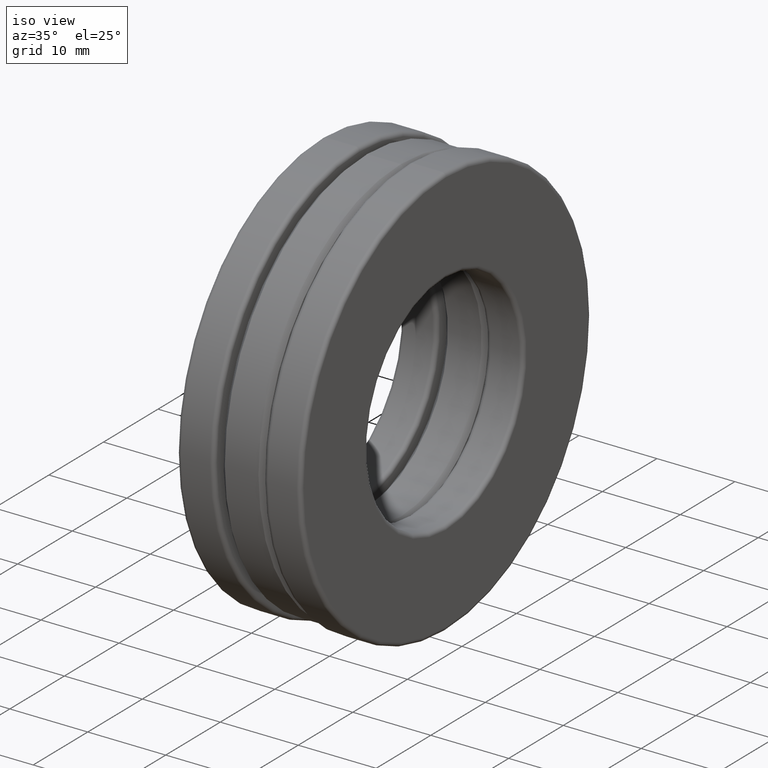
[diagram: clean part render]
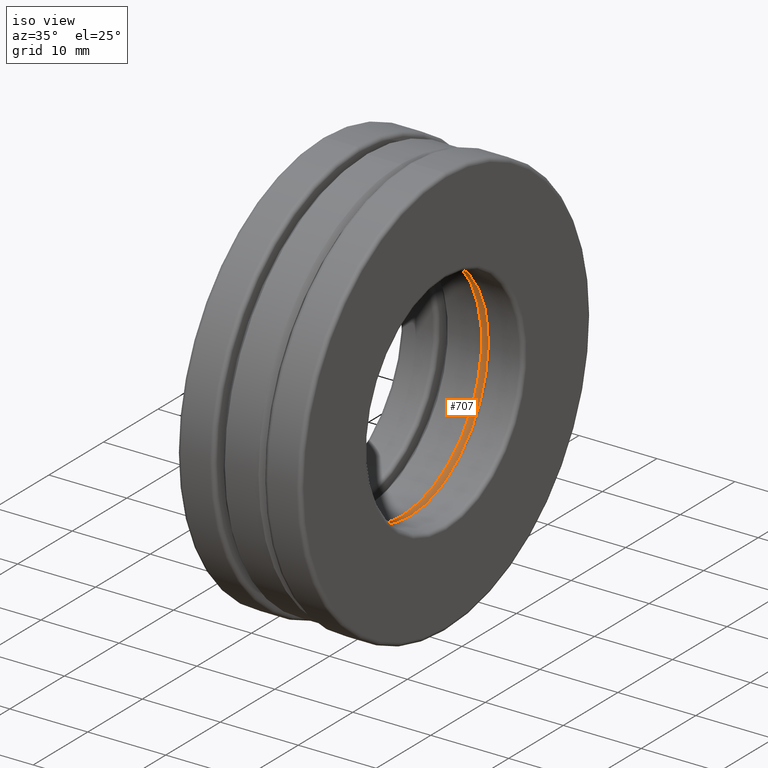
[diagram: same view with one face highlighted and labeled with its STEP entity id]
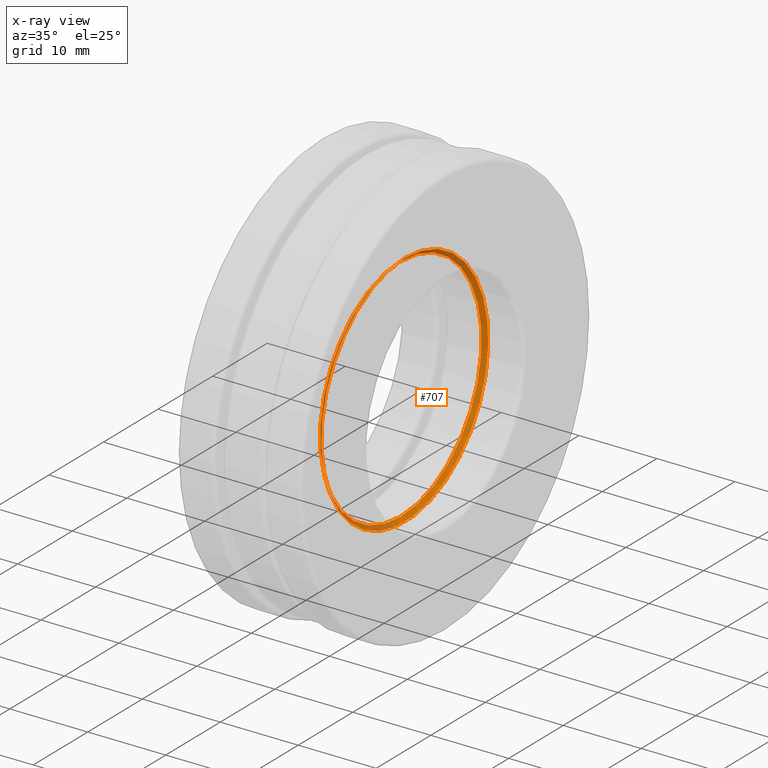
[diagram: x-ray of the same camera — body ghosted, the highlighted face saturated]
A machine part, iso view. The second image highlights one B-rep face of the part: STEP entity #707.
The next image is the same camera in x-ray: the body ghosted, the highlighted face saturated — about 31% of this face is hidden behind the body in this view.
In plain terms, the highlighted conical surface has half-angle 45 deg.
Its self-contained STEP definition (entity closure, byte-faithful):
#2 = ORIENTED_EDGE ( 'NONE', *, *, #763, .T. ) ;
#89 = AXIS2_PLACEMENT_3D ( 'NONE', #1329, #111, #1364 ) ;
#90 = EDGE_LOOP ( 'NONE', ( #151 ) ) ;
#111 = DIRECTION ( 'NONE',  ( 1.000000000000000000, 0.0000000000000000000, 0.0000000000000000000 ) ) ;
#151 = ORIENTED_EDGE ( 'NONE', *, *, #1345, .F. ) ;
#252 = FACE_BOUND ( 'NONE', #1342, .T. ) ;
#329 = CIRCLE ( 'NONE', #1159, 0.5825000000000000200 ) ;
#433 = VERTEX_POINT ( 'NONE', #863 ) ;
#437 = CIRCLE ( 'NONE', #1318, 0.6025000000000000400 ) ;
#551 = VERTEX_POINT ( 'NONE', #1222 ) ;
#598 = CARTESIAN_POINT ( 'NONE',  ( 0.08500000000000004800, 0.0000000000000000000, 0.0000000000000000000 ) ) ;
#707 = ADVANCED_FACE ( 'NONE', ( #252, #792 ), #829, .F. ) ;
#763 = EDGE_CURVE ( 'NONE', #551, #551, #329, .T. ) ;
#792 = FACE_OUTER_BOUND ( 'NONE', #90, .T. ) ;
#829 = CONICAL_SURFACE ( 'NONE', #89, 0.6025000000000000400, 0.7853981633974475000 ) ;
#835 = DIRECTION ( 'NONE',  ( -1.000000000000000000, -0.0000000000000000000, -0.0000000000000000000 ) ) ;
#839 = DIRECTION ( 'NONE',  ( 0.0000000000000000000, 0.0000000000000000000, 1.000000000000000000 ) ) ;
#863 = CARTESIAN_POINT ( 'NONE',  ( 0.1050000000000000800, 0.0000000000000000000, 0.6025000000000000400 ) ) ;
#957 = DIRECTION ( 'NONE',  ( 0.0000000000000000000, 0.0000000000000000000, 1.000000000000000000 ) ) ;
#975 = CARTESIAN_POINT ( 'NONE',  ( 0.1050000000000000800, 0.0000000000000000000, 0.0000000000000000000 ) ) ;
#1092 = DIRECTION ( 'NONE',  ( -1.000000000000000000, -0.0000000000000000000, -0.0000000000000000000 ) ) ;
#1159 = AXIS2_PLACEMENT_3D ( 'NONE', #598, #835, #957 ) ;
#1222 = CARTESIAN_POINT ( 'NONE',  ( 0.08500000000000004800, 0.0000000000000000000, 0.5825000000000000200 ) ) ;
#1318 = AXIS2_PLACEMENT_3D ( 'NONE', #975, #1092, #839 ) ;
#1329 = CARTESIAN_POINT ( 'NONE',  ( 0.1050000000000000800, 0.0000000000000000000, 0.0000000000000000000 ) ) ;
#1342 = EDGE_LOOP ( 'NONE', ( #2 ) ) ;
#1345 = EDGE_CURVE ( 'NONE', #433, #433, #437, .T. ) ;
#1364 = DIRECTION ( 'NONE',  ( 0.0000000000000000000, 0.0000000000000000000, -1.000000000000000000 ) ) ;